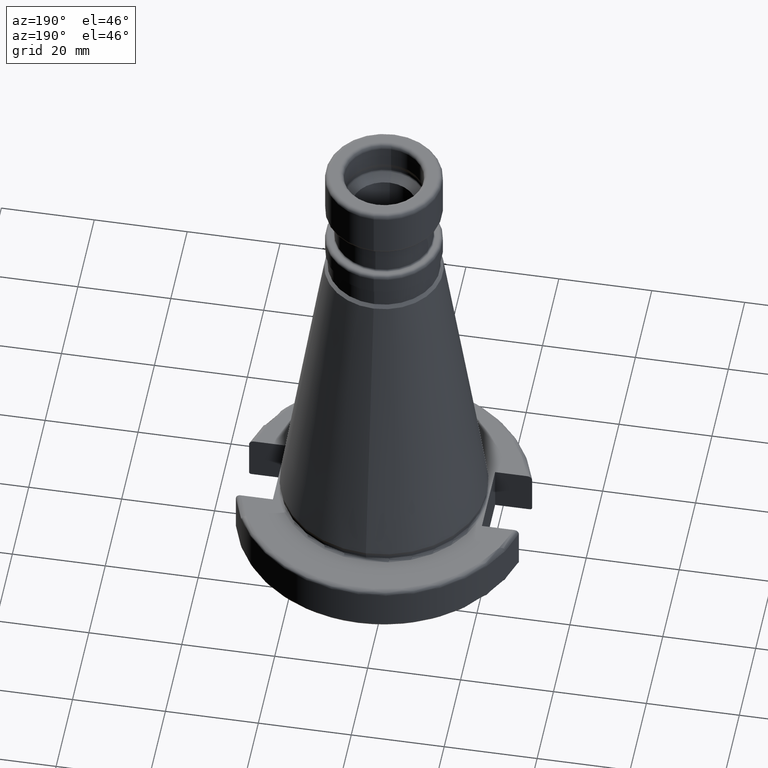
[diagram: clean part render]
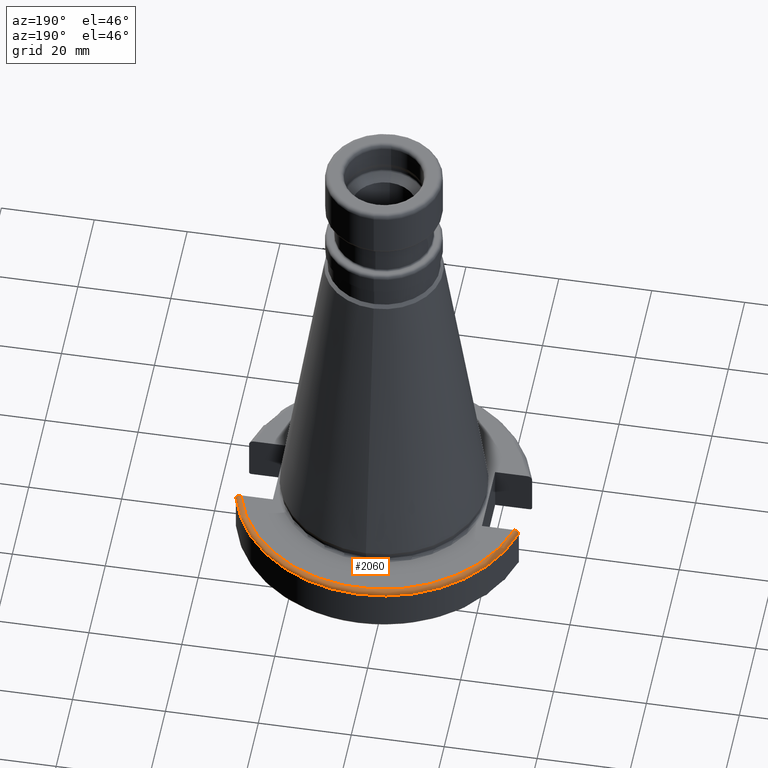
[diagram: same view with one face highlighted and labeled with its STEP entity id]
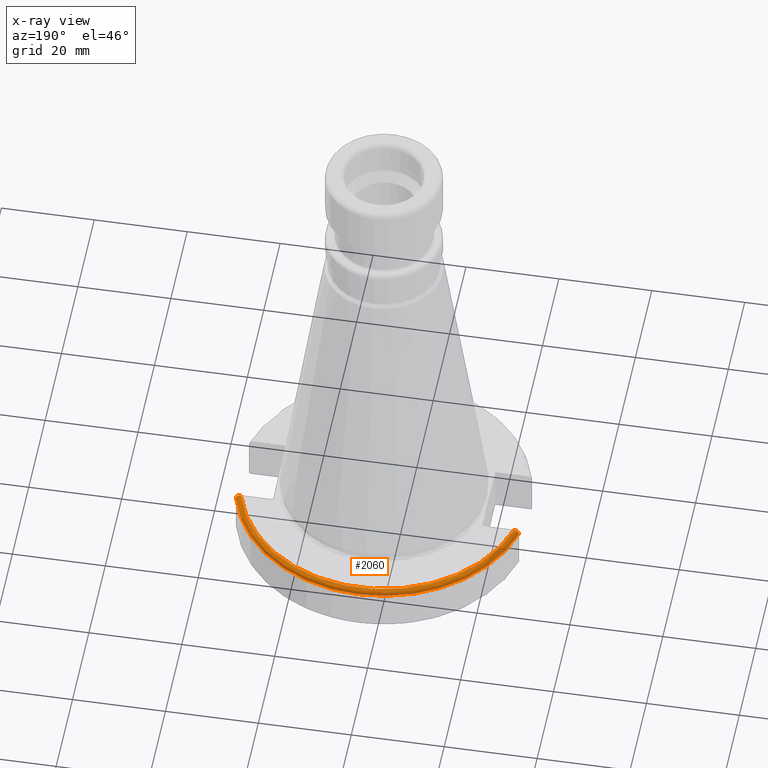
[diagram: x-ray of the same camera — body ghosted, the highlighted face saturated]
A machine part, auxiliary view. The second image highlights one B-rep face of the part: STEP entity #2060.
The next image is the same camera in x-ray: the body ghosted, the highlighted face saturated — about 0% of this face is hidden behind the body in this view.
In plain terms, the highlighted toroidal blend (fillet) surface has major radius 30.5 mm and minor (blend) radius 1 mm.
Its self-contained STEP definition (entity closure, byte-faithful):
#729=CARTESIAN_POINT('',(0,0,10));
#730=DIRECTION('',(0,0,1));
#731=DIRECTION('',(0.9645406257130,0.2639344262295,0));
#732=AXIS2_PLACEMENT_3D('',#729,#730,#731);
#734=CARTESIAN_POINT('',(-30.45402272279,8.05,9));
#735=CARTESIAN_POINT('',(-30.45402272279,8.05,9.066295674189));
#736=CARTESIAN_POINT('',(-30.44067909365,8.05,9.195764788873));
#737=CARTESIAN_POINT('',(-30.38189440266,8.05,9.383880744593));
#738=CARTESIAN_POINT('',(-30.28716348063,8.05,9.556081177445));
#739=CARTESIAN_POINT('',(-30.15911124968,8.05,9.708329536691));
#740=CARTESIAN_POINT('',(-30.00157569792,8.05,9.834451695568));
#741=CARTESIAN_POINT('',(-29.82047098457,8.05,9.928877763900));
#742=CARTESIAN_POINT('',(-29.62252618905,8.05,9.987034910241));
#743=CARTESIAN_POINT('',(-29.48746900286,8.05,10));
#744=CARTESIAN_POINT('',(-29.41848908425,8.05,10));
#746=CARTESIAN_POINT('',(0,0,9));
#747=DIRECTION('',(0,0,-1));
#748=DIRECTION('',(-0.9667943721520,0.2555555555556,0));
#749=AXIS2_PLACEMENT_3D('',#746,#747,#748);
#751=CARTESIAN_POINT('',(29.41848908425,8.05,10));
#752=CARTESIAN_POINT('',(29.48746900286,8.05,10));
#753=CARTESIAN_POINT('',(29.62252618905,8.05,9.987034910241));
#754=CARTESIAN_POINT('',(29.82047098457,8.05,9.928877763900));
#755=CARTESIAN_POINT('',(30.00157569792,8.05,9.834451695568));
#756=CARTESIAN_POINT('',(30.15911124968,8.05,9.708329536691));
#757=CARTESIAN_POINT('',(30.28716348063,8.05,9.556081177445));
#758=CARTESIAN_POINT('',(30.38189440266,8.05,9.383880744593));
#759=CARTESIAN_POINT('',(30.44067909365,8.05,9.195764788873));
#760=CARTESIAN_POINT('',(30.45402272279,8.05,9.066295674189));
#761=CARTESIAN_POINT('',(30.45402272279,8.05,9));
#1003=CARTESIAN_POINT('',(30.45402272279,8.05,9));
#1005=VERTEX_POINT('',#1003);
#1017=CARTESIAN_POINT('',(-29.41848908425,8.05,10));
#1018=VERTEX_POINT('',#1017);
#1029=CARTESIAN_POINT('',(29.41848908425,8.05,10));
#1030=VERTEX_POINT('',#1029);
#1035=CARTESIAN_POINT('',(-30.45402272279,8.05,9));
#1037=VERTEX_POINT('',#1035);
#2047=CARTESIAN_POINT('',(0,0,9));
#2048=DIRECTION('',(0,0,-1));
#2049=DIRECTION('',(-0.005004306050733,-0.9999874783821,0));
#2050=AXIS2_PLACEMENT_3D('',#2047,#2048,#2049);
#2051=TOROIDAL_SURFACE('',#2050,30.5,1);
#2052=ORIENTED_EDGE('',*,*,#1919,.T.);
#2054=ORIENTED_EDGE('',*,*,#2053,.F.);
#2055=ORIENTED_EDGE('',*,*,#2025,.T.);
#2057=ORIENTED_EDGE('',*,*,#2056,.F.);
#2058=EDGE_LOOP('',(#2052,#2054,#2055,#2057));
#2059=FACE_OUTER_BOUND('',#2058,.F.);
#2060=ADVANCED_FACE('',(#2059),#2051,.T.);
#733=CIRCLE('',#732,30.5);
#745=B_SPLINE_CURVE_WITH_KNOTS('',3,(#734,#735,#736,#737,#738,#739,#740,#741,
#742,#743,#744),.UNSPECIFIED.,.F.,.F.,(4,1,1,1,1,1,1,1,4),(0,0.125,0.25,
0.375,0.5,0.625,0.75,0.875,1),.UNSPECIFIED.);
#750=CIRCLE('',#749,31.5);
#762=B_SPLINE_CURVE_WITH_KNOTS('',3,(#751,#752,#753,#754,#755,#756,#757,#758,
#759,#760,#761),.UNSPECIFIED.,.F.,.F.,(4,1,1,1,1,1,1,1,4),(0,0.125,0.25,
0.375,0.5,0.625,0.75,0.875,1),.UNSPECIFIED.);
#1919=EDGE_CURVE('',#1030,#1018,#733,.T.);
#2025=EDGE_CURVE('',#1037,#1005,#750,.T.);
#2053=EDGE_CURVE('',#1037,#1018,#745,.T.);
#2056=EDGE_CURVE('',#1030,#1005,#762,.T.);